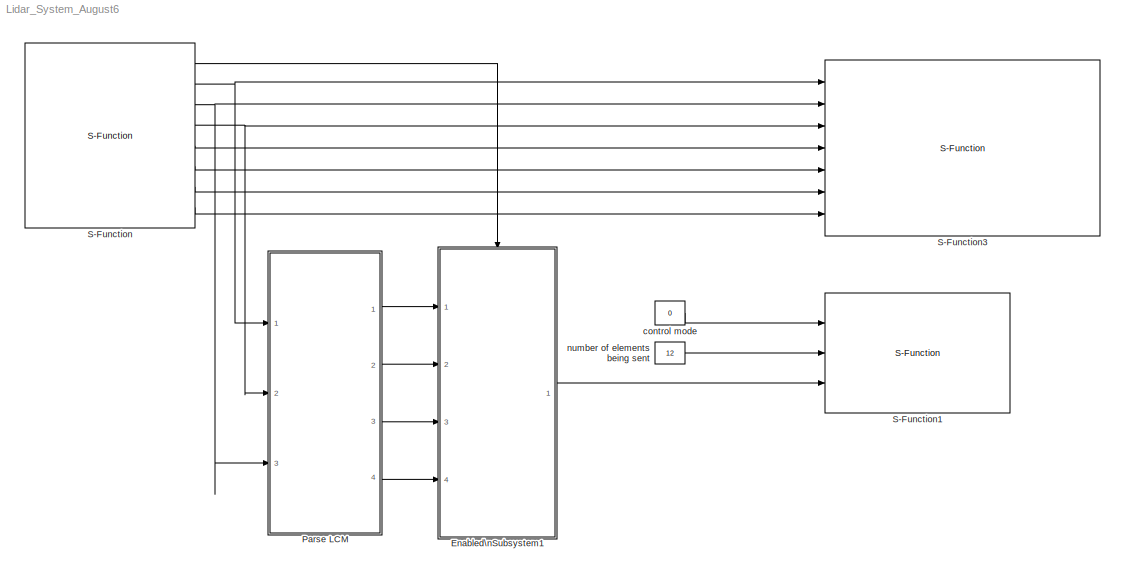
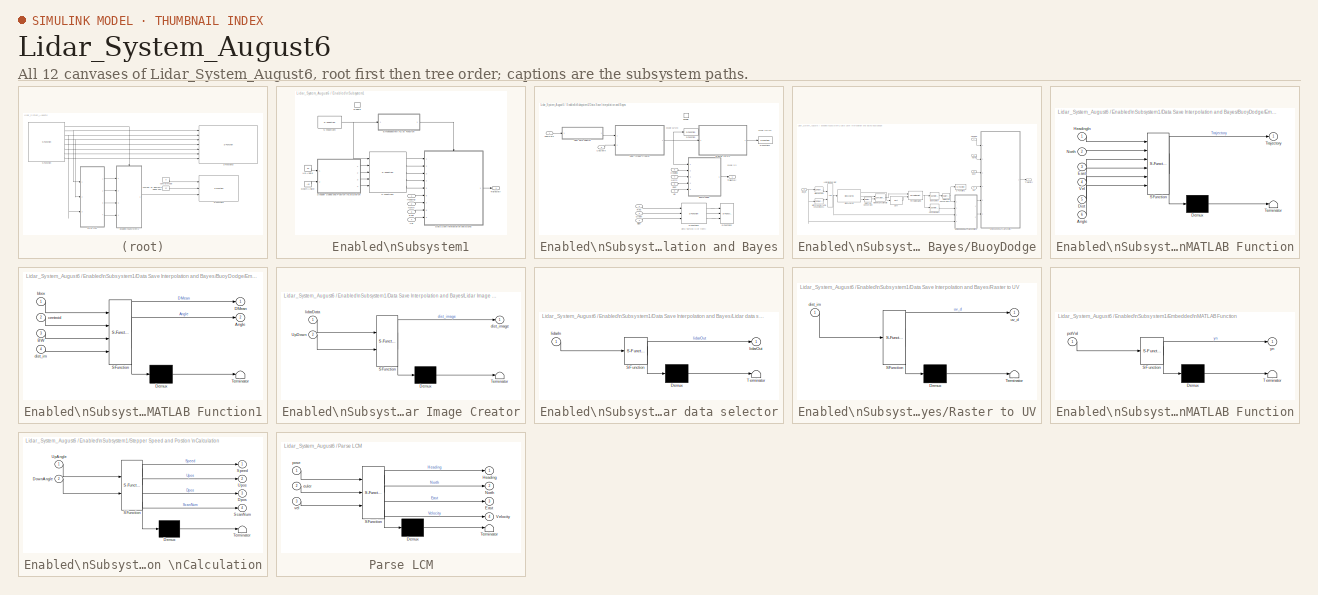
[diagram: thumbnail index - all 12 canvases of the model, root first then tree order]
MODEL Lidar_System_August6
KIND model
BLOCK [SubSystem] Enabled\nSubsystem1
  FunctionWithSeparateData = off
  MaskHideContents = off
  MinAlgLoopOccurrences = off
  Opaque = off
  Ports = [4, 1, 1]
  PropExecContextOutsideSubsystem = off
  RTWSystemCode = Auto
  RequestExecContextInheritance = off
  TreatAsAtomicUnit = on
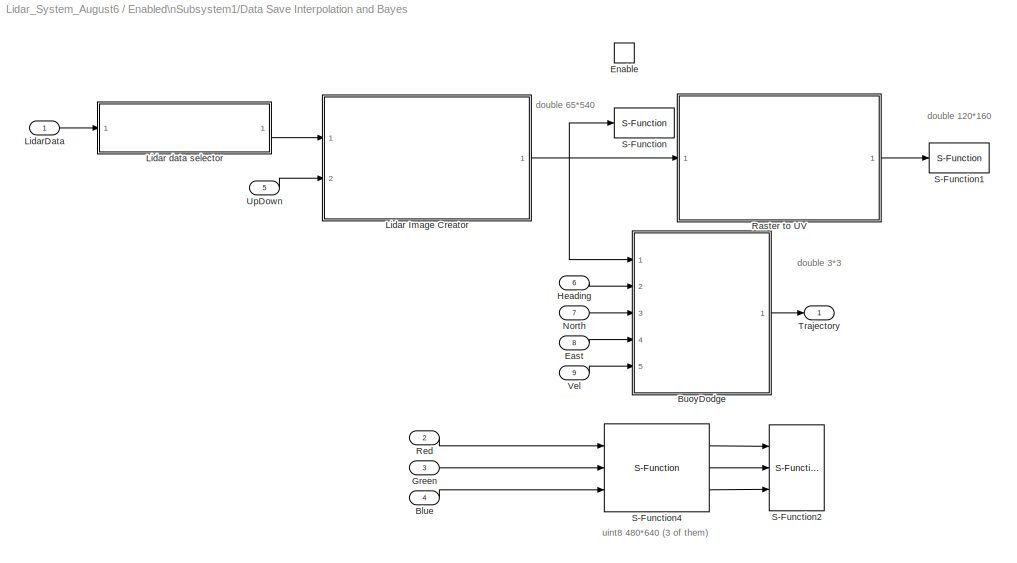
BLOCK [SubSystem] Enabled\nSubsystem1/Data Save Interpolation and Bayes
  FunctionWithSeparateData = off
  MaskHideContents = off
  MinAlgLoopOccurrences = off
  Opaque = off
  Ports = [9, 1, 1]
  PropExecContextOutsideSubsystem = off
  RTWSystemCode = Auto
  RequestExecContextInheritance = off
  TreatAsAtomicUnit = on
BLOCK [Inport] Enabled\nSubsystem1/Data Save Interpolation and Bayes/Blue
  IconDisplay = Port number
  OutDataType = fixdt(1, 16)
  OutScaling = 2^0
  Port = 4
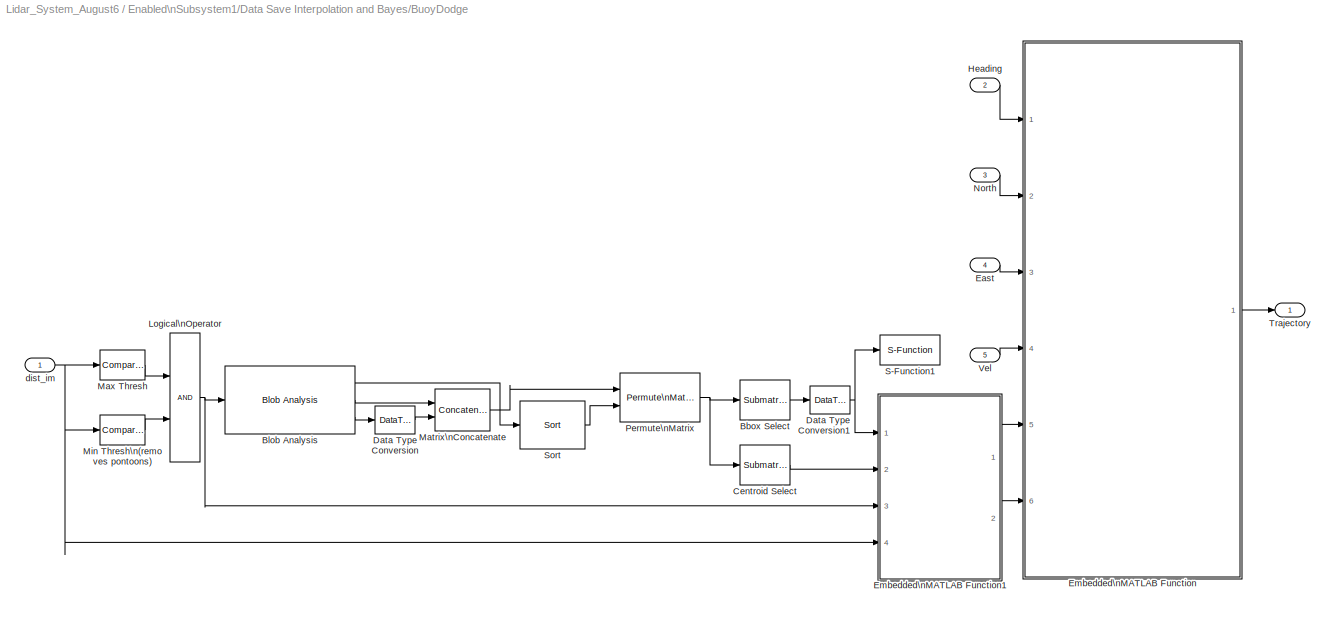
BLOCK [SubSystem] Enabled\nSubsystem1/Data Save Interpolation and Bayes/BuoyDodge
  FunctionWithSeparateData = off
  MaskHideContents = off
  MinAlgLoopOccurrences = off
  Opaque = off
  Ports = [5, 1]
  PropExecContextOutsideSubsystem = off
  RTWSystemCode = Auto
  RequestExecContextInheritance = off
BLOCK [Reference] Enabled\nSubsystem1/Data Save Interpolation and Bayes/BuoyDodge/Bbox Select  REF=dspmtrx3/Submatrix
  ColEndIndex = 1
  ColEndMode = Last
  ColSpan = One column
  ColStartIndex = 1
  ColStartMode = First
  Ports = [1, 1]
  RowEndIndex = 4
  RowEndMode = Last
  RowSpan = Range of rows
  RowStartIndex = 3
  RowStartMode = Index
  SourceBlock = dspmtrx3/Submatrix
  SourceType = Submatrix
BLOCK [Reference] Enabled\nSubsystem1/Data Save Interpolation and Bayes/BuoyDodge/Blob Analysis  REF=vipstatistics/Blob Analysis
  DialogController = vipDDGCreate
  DialogControllerArgs = DataTag0
  LockScale = off
  Ports = [1, 3]
  SourceBlock = vipstatistics/Blob Analysis
  SourceType = Blob Analysis
  accumFracLength = 0
  accumMode = Binary point scaling
  accumWordLength = 32
  angle = off
  area = on
  bBox = on
  centroid = on
  conn = 8
  eccentricity = off
  equivDiameterSq = off
  excludeBorderBlob = off
  extent = off
  fillValues = -1
  firstCoeffFracLength = 14
  firstCoeffMode = Binary point scaling
  firstCoeffWordLength = 16
  isCount = off
  isFill = on
  isLabel = off
  isOutVarDim = off
  majorAxis = off
  maxArea = intmax('uint32')
  maxBlobs = 12
  memoryFracLength = 16
  memoryMode = Same as product output
  memoryWordLength = 32
  minArea = 0
  minorAxis = off
  outDT = double
  outputFracLength = 16
  outputMode = Binary point scaling
  outputWordLength = 32
  overflowMode = off
  perimeter = off
  prodOutputFracLength = 16
  prodOutputMode = Binary point scaling
  prodOutputWordLength = 32
  roundingMode = Floor
  secondCoeffFracLength = 16
  secondCoeffMode = Binary point scaling
  secondCoeffWordLength = 32
  useMaxArea = off
  useMinArea = off
  warnIfNumBlobsExceeded = on
BLOCK [Reference] Enabled\nSubsystem1/Data Save Interpolation and Bayes/BuoyDodge/Centroid Select  REF=dspmtrx3/Submatrix
  ColEndIndex = 1
  ColEndMode = Last
  ColSpan = One column
  ColStartIndex = 1
  ColStartMode = First
  Ports = [1, 1]
  RowEndIndex = 2
  RowEndMode = Index
  RowSpan = Range of rows
  RowStartIndex = 5
  RowStartMode = First
  SourceBlock = dspmtrx3/Submatrix
  SourceType = Submatrix
BLOCK [DataTypeConversion] Enabled\nSubsystem1/Data Save Interpolation and Bayes/BuoyDodge/Data Type Conversion
  OutDataType = fixdt(1, 16)
  OutDataTypeMode = double
  OutDataTypeStr = double
  OutScaling = 2^0
  RndMeth = Floor
  SaturateOnIntegerOverflow = off
BLOCK [DataTypeConversion] Enabled\nSubsystem1/Data Save Interpolation and Bayes/BuoyDodge/Data Type Conversion1
  OutDataType = fixdt(1, 16)
  OutDataTypeMode = int32
  OutDataTypeStr = int32
  OutScaling = 2^0
  RndMeth = Floor
  SaturateOnIntegerOverflow = off
BLOCK [Inport] Enabled\nSubsystem1/Data Save Interpolation and Bayes/BuoyDodge/East
  IconDisplay = Port number
  OutDataType = fixdt(1, 16)
  OutScaling = 2^0
  Port = 4
BLOCK [SubSystem] Enabled\nSubsystem1/Data Save Interpolation and Bayes/BuoyDodge/Embedded\nMATLAB Function
  FunctionWithSeparateData = off
  MaskDescription = Embedded MATLAB block
  MaskDisplay = disp('BuoyTrajectories');
  MaskHideContents = off
  MaskIconFrame = on
  MaskIconOpaque = off
  MaskIconRotate = none
  MaskIconUnits = autoscale
  MaskPortRotate = default
  MaskSelfModifiable = on
  MaskType = Stateflow
  MinAlgLoopOccurrences = off
  Opaque = off
  PermitHierarchicalResolution = ExplicitOnly
  Ports = [6, 1]
  PropExecContextOutsideSubsystem = off
  RTWSystemCode = Auto
  RequestExecContextInheritance = off
BLOCK [Demux] Enabled\nSubsystem1/Data Save Interpolation and Bayes/BuoyDodge/Embedded\nMATLAB Function/ Demux 
  Outputs = 1
  Ports = [1, 1]
BLOCK [S-Function] Enabled\nSubsystem1/Data Save Interpolation and Bayes/BuoyDodge/Embedded\nMATLAB Function/ SFunction 
  EnableBusSupport = on
  FunctionName = sf_sfun
  PortCounts = [6 2]
  Ports = [6, 2]
  Tag = Stateflow S-Function Lidar_System_August6 2
BLOCK [Terminator] Enabled\nSubsystem1/Data Save Interpolation and Bayes/BuoyDodge/Embedded\nMATLAB Function/ Terminator 
BLOCK [Inport] Enabled\nSubsystem1/Data Save Interpolation and Bayes/BuoyDodge/Embedded\nMATLAB Function/Angle
  IconDisplay = Port number
  Port = 6
BLOCK [Inport] Enabled\nSubsystem1/Data Save Interpolation and Bayes/BuoyDodge/Embedded\nMATLAB Function/Dist
  IconDisplay = Port number
  Port = 5
BLOCK [Inport] Enabled\nSubsystem1/Data Save Interpolation and Bayes/BuoyDodge/Embedded\nMATLAB Function/East
  IconDisplay = Port number
  Port = 3
BLOCK [Inport] Enabled\nSubsystem1/Data Save Interpolation and Bayes/BuoyDodge/Embedded\nMATLAB Function/HeadingIn
  IconDisplay = Port number
  OutDataType = sfix(16)
  OutScaling = 2^0
BLOCK [Inport] Enabled\nSubsystem1/Data Save Interpolation and Bayes/BuoyDodge/Embedded\nMATLAB Function/North
  IconDisplay = Port number
  Port = 2
BLOCK [Outport] Enabled\nSubsystem1/Data Save Interpolation and Bayes/BuoyDodge/Embedded\nMATLAB Function/Trajectory
  IconDisplay = Port number
  OutDataType = sfix(16)
  OutScaling = 2^0
BLOCK [Inport] Enabled\nSubsystem1/Data Save Interpolation and Bayes/BuoyDodge/Embedded\nMATLAB Function/Vel
  IconDisplay = Port number
  Port = 4
BLOCK [SubSystem] Enabled\nSubsystem1/Data Save Interpolation and Bayes/BuoyDodge/Embedded\nMATLAB Function1
  FunctionWithSeparateData = off
  MaskDescription = Embedded MATLAB block
  MaskDisplay = disp('bbox_hist');
  MaskHideContents = off
  MaskIconFrame = on
  MaskIconOpaque = off
  MaskIconRotate = none
  MaskIconUnits = autoscale
  MaskPortRotate = default
  MaskSelfModifiable = on
  MaskType = Stateflow
  MinAlgLoopOccurrences = off
  Opaque = off
  PermitHierarchicalResolution = ExplicitOnly
  Ports = [4, 2]
  PropExecContextOutsideSubsystem = off
  RTWSystemCode = Auto
  RequestExecContextInheritance = off
BLOCK [Demux] Enabled\nSubsystem1/Data Save Interpolation and Bayes/BuoyDodge/Embedded\nMATLAB Function1/ Demux 
  Outputs = 1
  Ports = [1, 1]
BLOCK [S-Function] Enabled\nSubsystem1/Data Save Interpolation and Bayes/BuoyDodge/Embedded\nMATLAB Function1/ SFunction 
  EnableBusSupport = on
  FunctionName = sf_sfun
  PortCounts = [4 3]
  Ports = [4, 3]
  Tag = Stateflow S-Function Lidar_System_August6 3
BLOCK [Terminator] Enabled\nSubsystem1/Data Save Interpolation and Bayes/BuoyDodge/Embedded\nMATLAB Function1/ Terminator 
BLOCK [Outport] Enabled\nSubsystem1/Data Save Interpolation and Bayes/BuoyDodge/Embedded\nMATLAB Function1/Angle
  IconDisplay = Port number
  Port = 2
BLOCK [Inport] Enabled\nSubsystem1/Data Save Interpolation and Bayes/BuoyDodge/Embedded\nMATLAB Function1/BW
  IconDisplay = Port number
  Port = 3
BLOCK [Outport] Enabled\nSubsystem1/Data Save Interpolation and Bayes/BuoyDodge/Embedded\nMATLAB Function1/DMean
  IconDisplay = Port number
BLOCK [Inport] Enabled\nSubsystem1/Data Save Interpolation and Bayes/BuoyDodge/Embedded\nMATLAB Function1/bbox
  IconDisplay = Port number
  OutDataType = sfix(16)
  OutScaling = 2^0
BLOCK [Inport] Enabled\nSubsystem1/Data Save Interpolation and Bayes/BuoyDodge/Embedded\nMATLAB Function1/centroid
  IconDisplay = Port number
  Port = 2
BLOCK [Inport] Enabled\nSubsystem1/Data Save Interpolation and Bayes/BuoyDodge/Embedded\nMATLAB Function1/dist_im
  IconDisplay = Port number
  Port = 4
BLOCK [Inport] Enabled\nSubsystem1/Data Save Interpolation and Bayes/BuoyDodge/Heading
  IconDisplay = Port number
  OutDataType = fixdt(1, 16)
  OutScaling = 2^0
  Port = 2
BLOCK [Logic] Enabled\nSubsystem1/Data Save Interpolation and Bayes/BuoyDodge/Logical\nOperator
  AllPortsSameDT = off
  LogicDataType = fixdt(0, 8)
  OutDataTypeMode = boolean
  OutDataTypeStr = boolean
  Ports = [2, 1]
BLOCK [Concatenate] Enabled\nSubsystem1/Data Save Interpolation and Bayes/BuoyDodge/Matrix\nConcatenate
  Mode = Multidimensional array
  Ports = [2, 1]
BLOCK [Reference] Enabled\nSubsystem1/Data Save Interpolation and Bayes/BuoyDodge/Max Thresh  REF=simulink/Logic and Bit\nOperations/Compare\nTo Constant
  FunctionWithSeparateData = off
  LogicOutDataTypeMode = boolean
  Ports = [1, 1]
  RTWMemSecDataConstants = Inherit from model
  RTWMemSecDataInternal = Inherit from model
  RTWMemSecDataParameters = Inherit from model
  RTWMemSecFuncExecute = Inherit from model
  RTWMemSecFuncInitTerm = Inherit from model
  ShowPortLabels = FromPortIcon
  SourceBlock = simulink/Logic and Bit\nOperations/Compare\nTo Constant
  SourceType = Compare To Constant
  SystemSampleTime = -1
  ZeroCross = off
  const = 20000
  relop = <=
BLOCK [Reference] Enabled\nSubsystem1/Data Save Interpolation and Bayes/BuoyDodge/Min Thresh\n(removes pontoons)  REF=simulink/Logic and Bit\nOperations/Compare\nTo Constant
  FunctionWithSeparateData = off
  LogicOutDataTypeMode = boolean
  Ports = [1, 1]
  RTWMemSecDataConstants = Inherit from model
  RTWMemSecDataInternal = Inherit from model
  RTWMemSecDataParameters = Inherit from model
  RTWMemSecFuncExecute = Inherit from model
  RTWMemSecFuncInitTerm = Inherit from model
  ShowPortLabels = FromPortIcon
  SourceBlock = simulink/Logic and Bit\nOperations/Compare\nTo Constant
  SourceType = Compare To Constant
  SystemSampleTime = -1
  ZeroCross = off
  const = 2000
  relop = >
BLOCK [Inport] Enabled\nSubsystem1/Data Save Interpolation and Bayes/BuoyDodge/North
  IconDisplay = Port number
  OutDataType = fixdt(1, 16)
  OutScaling = 2^0
  Port = 3
BLOCK [Reference] Enabled\nSubsystem1/Data Save Interpolation and Bayes/BuoyDodge/Permute\nMatrix  REF=dspmtrx3/Permute\nMatrix
  Ports = [2, 1]
  SourceBlock = dspmtrx3/Permute\nMatrix
  SourceType = Permute Matrix
  ZeroOneIdxMode = One-based
  checkDims = off
  errmode = Clip index
  mode = Columns
BLOCK [S-Function] Enabled\nSubsystem1/Data Save Interpolation and Bayes/BuoyDodge/S-Function1
  EnableBusSupport = off
  FunctionName = singleblobprint
  Ports = [1]
BLOCK [Reference] Enabled\nSubsystem1/Data Save Interpolation and Bayes/BuoyDodge/Sort  REF=dspstat3/Sort
  DialogController = dspDDGCreate
  DialogControllerArgs = DataTag1
  LockScale = off
  Ports = [1, 1]
  SourceBlock = dspstat3/Sort
  SourceType = Sort
  accumFracLength = 30
  accumMode = Same as product output
  accumWordLength = 32
  additionalParams = off
  allowOverrides = on
  dir = Descending
  otype = Index
  overflowMode = off
  prodOutputFracLength = 30
  prodOutputMode = Same as input
  prodOutputWordLength = 32
  roundingMode = Floor
  sortAlg = Quick sort
BLOCK [Outport] Enabled\nSubsystem1/Data Save Interpolation and Bayes/BuoyDodge/Trajectory
  IconDisplay = Port number
  OutDataType = fixdt(1, 16)
  OutScaling = 2^0
BLOCK [Inport] Enabled\nSubsystem1/Data Save Interpolation and Bayes/BuoyDodge/Vel
  IconDisplay = Port number
  OutDataType = fixdt(1, 16)
  OutScaling = 2^0
  Port = 5
BLOCK [Inport] Enabled\nSubsystem1/Data Save Interpolation and Bayes/BuoyDodge/dist_im
  IconDisplay = Port number
  OutDataType = fixdt(1, 16)
  OutScaling = 2^0
BLOCK [Inport] Enabled\nSubsystem1/Data Save Interpolation and Bayes/East
  IconDisplay = Port number
  OutDataType = fixdt(1, 16)
  OutScaling = 2^0
  Port = 8
BLOCK [EnablePort] Enabled\nSubsystem1/Data Save Interpolation and Bayes/Enable
  Ports = []
BLOCK [Inport] Enabled\nSubsystem1/Data Save Interpolation and Bayes/Green
  IconDisplay = Port number
  OutDataType = fixdt(1, 16)
  OutScaling = 2^0
  Port = 3
BLOCK [Inport] Enabled\nSubsystem1/Data Save Interpolation and Bayes/Heading
  IconDisplay = Port number
  OutDataType = fixdt(1, 16)
  OutScaling = 2^0
  Port = 6
BLOCK [SubSystem] Enabled\nSubsystem1/Data Save Interpolation and Bayes/Lidar Image Creator
  FunctionWithSeparateData = off
  MaskDescription = Embedded MATLAB block
  MaskDisplay = disp('scanImages');
  MaskHideContents = off
  MaskIconFrame = on
  MaskIconOpaque = off
  MaskIconRotate = none
  MaskIconUnits = autoscale
  MaskPortRotate = default
  MaskSelfModifiable = on
  MaskType = Stateflow
  MinAlgLoopOccurrences = off
  Opaque = off
  PermitHierarchicalResolution = ExplicitOnly
  Ports = [2, 1]
  PropExecContextOutsideSubsystem = off
  RTWSystemCode = Auto
  RequestExecContextInheritance = off
BLOCK [Demux] Enabled\nSubsystem1/Data Save Interpolation and Bayes/Lidar Image Creator/ Demux 
  Outputs = 1
  Ports = [1, 1]
BLOCK [S-Function] Enabled\nSubsystem1/Data Save Interpolation and Bayes/Lidar Image Creator/ SFunction 
  EnableBusSupport = on
  FunctionName = sf_sfun
  PortCounts = [2 2]
  Ports = [2, 2]
  Tag = Stateflow S-Function Lidar_System_August6 10
BLOCK [Terminator] Enabled\nSubsystem1/Data Save Interpolation and Bayes/Lidar Image Creator/ Terminator 
BLOCK [Inport] Enabled\nSubsystem1/Data Save Interpolation and Bayes/Lidar Image Creator/UpDown
  IconDisplay = Port number
  Port = 2
BLOCK [Outport] Enabled\nSubsystem1/Data Save Interpolation and Bayes/Lidar Image Creator/dist_image
  IconDisplay = Port number
  OutDataType = sfix(16)
  OutScaling = 2^0
BLOCK [Inport] Enabled\nSubsystem1/Data Save Interpolation and Bayes/Lidar Image Creator/lidarData
  IconDisplay = Port number
  OutDataType = sfix(16)
  OutScaling = 2^0
BLOCK [SubSystem] Enabled\nSubsystem1/Data Save Interpolation and Bayes/Lidar data selector
  FunctionWithSeparateData = off
  MaskDescription = Embedded MATLAB block
  MaskDisplay = disp('data_selector');
  MaskHideContents = off
  MaskIconFrame = on
  MaskIconOpaque = off
  MaskIconRotate = none
  MaskIconUnits = autoscale
  MaskPortRotate = default
  MaskSelfModifiable = on
  MaskType = Stateflow
  MinAlgLoopOccurrences = off
  Opaque = off
  PermitHierarchicalResolution = ExplicitOnly
  Ports = [1, 1]
  PropExecContextOutsideSubsystem = off
  RTWSystemCode = Auto
  RequestExecContextInheritance = off
BLOCK [Demux] Enabled\nSubsystem1/Data Save Interpolation and Bayes/Lidar data selector/ Demux 
  Outputs = 1
  Ports = [1, 1]
BLOCK [S-Function] Enabled\nSubsystem1/Data Save Interpolation and Bayes/Lidar data selector/ SFunction 
  EnableBusSupport = on
  FunctionName = sf_sfun
  PortCounts = [1 2]
  Ports = [1, 2]
  Tag = Stateflow S-Function Lidar_System_August6 11
BLOCK [Terminator] Enabled\nSubsystem1/Data Save Interpolation and Bayes/Lidar data selector/ Terminator 
BLOCK [Inport] Enabled\nSubsystem1/Data Save Interpolation and Bayes/Lidar data selector/lidarIn
  IconDisplay = Port number
  OutDataType = sfix(16)
  OutScaling = 2^0
BLOCK [Outport] Enabled\nSubsystem1/Data Save Interpolation and Bayes/Lidar data selector/lidarOut
  IconDisplay = Port number
  OutDataType = sfix(16)
  OutScaling = 2^0
BLOCK [Inport] Enabled\nSubsystem1/Data Save Interpolation and Bayes/LidarData
  IconDisplay = Port number
  OutDataType = fixdt(1, 16)
  OutScaling = 2^0
BLOCK [Inport] Enabled\nSubsystem1/Data Save Interpolation and Bayes/North
  IconDisplay = Port number
  OutDataType = fixdt(1, 16)
  OutScaling = 2^0
  Port = 7
BLOCK [SubSystem] Enabled\nSubsystem1/Data Save Interpolation and Bayes/Raster to UV
  FunctionWithSeparateData = off
  MaskDescription = Embedded MATLAB block
  MaskDisplay = disp('AngleMatch');
  MaskHideContents = off
  MaskIconFrame = on
  MaskIconOpaque = off
  MaskIconRotate = none
  MaskIconUnits = autoscale
  MaskPortRotate = default
  MaskSelfModifiable = on
  MaskType = Stateflow
  MinAlgLoopOccurrences = off
  Opaque = off
  PermitHierarchicalResolution = ExplicitOnly
  Ports = [1, 1]
  PropExecContextOutsideSubsystem = off
  RTWSystemCode = Auto
  RequestExecContextInheritance = off
BLOCK [Demux] Enabled\nSubsystem1/Data Save Interpolation and Bayes/Raster to UV/ Demux 
  Outputs = 1
  Ports = [1, 1]
BLOCK [S-Function] Enabled\nSubsystem1/Data Save Interpolation and Bayes/Raster to UV/ SFunction 
  EnableBusSupport = on
  FunctionName = sf_sfun
  PortCounts = [1 2]
  Ports = [1, 2]
  Tag = Stateflow S-Function Lidar_System_August6 5
BLOCK [Terminator] Enabled\nSubsystem1/Data Save Interpolation and Bayes/Raster to UV/ Terminator 
BLOCK [Inport] Enabled\nSubsystem1/Data Save Interpolation and Bayes/Raster to UV/dist_im
  IconDisplay = Port number
BLOCK [Outport] Enabled\nSubsystem1/Data Save Interpolation and Bayes/Raster to UV/uv_d
  IconDisplay = Port number
  OutDataType = sfix(16)
  OutScaling = 2^0
BLOCK [Inport] Enabled\nSubsystem1/Data Save Interpolation and Bayes/Red
  IconDisplay = Port number
  OutDataType = fixdt(1, 16)
  OutScaling = 2^0
  Port = 2
BLOCK [S-Function] Enabled\nSubsystem1/Data Save Interpolation and Bayes/S-Function
  EnableBusSupport = off
  FunctionName = distimageExportV2
  Ports = [1]
BLOCK [S-Function] Enabled\nSubsystem1/Data Save Interpolation and Bayes/S-Function1
  EnableBusSupport = off
  FunctionName = uvdataExportV3
  Ports = [1]
BLOCK [S-Function] Enabled\nSubsystem1/Data Save Interpolation and Bayes/S-Function2
  EnableBusSupport = off
  FunctionName = hsvExport
  Ports = [3]
BLOCK [S-Function] Enabled\nSubsystem1/Data Save Interpolation and Bayes/S-Function4
  EnableBusSupport = off
  FunctionName = rgbtohsv_sfunV2
  Ports = [3, 3]
BLOCK [Outport] Enabled\nSubsystem1/Data Save Interpolation and Bayes/Trajectory
  IconDisplay = Port number
  OutDataType = fixdt(1, 16)
  OutScaling = 2^0
BLOCK [Inport] Enabled\nSubsystem1/Data Save Interpolation and Bayes/UpDown
  IconDisplay = Port number
  OutDataType = fixdt(1, 16)
  OutScaling = 2^0
  Port = 5
BLOCK [Inport] Enabled\nSubsystem1/Data Save Interpolation and Bayes/Vel
  IconDisplay = Port number
  OutDataType = fixdt(1, 16)
  OutScaling = 2^0
  Port = 9
BLOCK [Constant] Enabled\nSubsystem1/Down Angle
  OutDataType = fixdt(1, 16)
  OutScaling = 2^0
  Value = -45
BLOCK [Inport] Enabled\nSubsystem1/East
  IconDisplay = Port number
  OutDataType = fixdt(1, 16)
  OutScaling = 2^0
  Port = 3
BLOCK [SubSystem] Enabled\nSubsystem1/Embedded\nMATLAB Function
  FunctionWithSeparateData = off
  MaskDescription = Embedded MATLAB block
  MaskDisplay = disp('check_pot_val');
  MaskHideContents = off
  MaskIconFrame = on
  MaskIconOpaque = off
  MaskIconRotate = none
  MaskIconUnits = autoscale
  MaskPortRotate = default
  MaskSelfModifiable = on
  MaskType = Stateflow
  MinAlgLoopOccurrences = off
  Opaque = off
  PermitHierarchicalResolution = ExplicitOnly
  Ports = [1, 1]
  PropExecContextOutsideSubsystem = off
  RTWSystemCode = Auto
  RequestExecContextInheritance = off
BLOCK [Demux] Enabled\nSubsystem1/Embedded\nMATLAB Function/ Demux 
  Outputs = 1
  Ports = [1, 1]
BLOCK [S-Function] Enabled\nSubsystem1/Embedded\nMATLAB Function/ SFunction 
  EnableBusSupport = on
  FunctionName = sf_sfun
  PortCounts = [1 2]
  Ports = [1, 2]
  Tag = Stateflow S-Function Lidar_System_August6 13
BLOCK [Terminator] Enabled\nSubsystem1/Embedded\nMATLAB Function/ Terminator 
BLOCK [Inport] Enabled\nSubsystem1/Embedded\nMATLAB Function/potVal
  IconDisplay = Port number
  OutDataType = sfix(16)
  OutScaling = 2^0
BLOCK [Outport] Enabled\nSubsystem1/Embedded\nMATLAB Function/yn
  IconDisplay = Port number
  OutDataType = sfix(16)
  OutScaling = 2^0
BLOCK [EnablePort] Enabled\nSubsystem1/Enable
  Ports = []
BLOCK [Inport] Enabled\nSubsystem1/Heading
  IconDisplay = Port number
  OutDataType = fixdt(1, 16)
  OutScaling = 2^0
BLOCK [Inport] Enabled\nSubsystem1/North
  IconDisplay = Port number
  OutDataType = fixdt(1, 16)
  OutScaling = 2^0
  Port = 2
BLOCK [S-Function] Enabled\nSubsystem1/S-Function1
  EnableBusSupport = off
  FunctionName = lidarCam_sfunct
  Ports = [5, 5]
BLOCK [S-Function] Enabled\nSubsystem1/S-Function4
  EnableBusSupport = off
  FunctionName = TT_pot_readerV1
  Ports = [0, 1]
BLOCK [SubSystem] Enabled\nSubsystem1/Stepper Speed and Postion \nCalculation
  FunctionWithSeparateData = off
  MaskDescription = Embedded MATLAB block
  MaskDisplay = disp('stepper_calc');
  MaskHideContents = off
  MaskIconFrame = on
  MaskIconOpaque = off
  MaskIconRotate = none
  MaskIconUnits = autoscale
  MaskPortRotate = default
  MaskSelfModifiable = on
  MaskType = Stateflow
  MinAlgLoopOccurrences = off
  Opaque = off
  PermitHierarchicalResolution = ExplicitOnly
  Ports = [2, 4]
  PropExecContextOutsideSubsystem = off
  RTWSystemCode = Auto
  RequestExecContextInheritance = off
BLOCK [Demux] Enabled\nSubsystem1/Stepper Speed and Postion \nCalculation/ Demux 
  Outputs = 1
  Ports = [1, 1]
BLOCK [S-Function] Enabled\nSubsystem1/Stepper Speed and Postion \nCalculation/ SFunction 
  EnableBusSupport = on
  FunctionName = sf_sfun
  PortCounts = [2 5]
  Ports = [2, 5]
  Tag = Stateflow S-Function Lidar_System_August6 14
BLOCK [Terminator] Enabled\nSubsystem1/Stepper Speed and Postion \nCalculation/ Terminator 
BLOCK [Inport] Enabled\nSubsystem1/Stepper Speed and Postion \nCalculation/DownAngle
  IconDisplay = Port number
  Port = 2
BLOCK [Outport] Enabled\nSubsystem1/Stepper Speed and Postion \nCalculation/Dpos
  IconDisplay = Port number
  Port = 3
BLOCK [Outport] Enabled\nSubsystem1/Stepper Speed and Postion \nCalculation/ScanNum
  IconDisplay = Port number
  Port = 4
BLOCK [Outport] Enabled\nSubsystem1/Stepper Speed and Postion \nCalculation/Speed
  IconDisplay = Port number
  OutDataType = sfix(16)
  OutScaling = 2^0
BLOCK [Inport] Enabled\nSubsystem1/Stepper Speed and Postion \nCalculation/UpAngle
  IconDisplay = Port number
  OutDataType = sfix(16)
  OutScaling = 2^0
BLOCK [Outport] Enabled\nSubsystem1/Stepper Speed and Postion \nCalculation/Upos
  IconDisplay = Port number
  Port = 2
BLOCK [Outport] Enabled\nSubsystem1/Trajectory
  IconDisplay = Port number
  OutDataType = fixdt(1, 16)
  OutScaling = 2^0
BLOCK [Constant] Enabled\nSubsystem1/Up Angle
  OutDataType = fixdt(1, 16)
  OutScaling = 2^0
  Value = 30
BLOCK [Inport] Enabled\nSubsystem1/Vel
  IconDisplay = Port number
  OutDataType = fixdt(1, 16)
  OutScaling = 2^0
  Port = 4
BLOCK [SubSystem] Parse LCM
  FunctionWithSeparateData = off
  MaskDescription = Embedded MATLAB block
  MaskDisplay = disp('ParseLCM');
  MaskHideContents = off
  MaskIconFrame = on
  MaskIconOpaque = off
  MaskIconRotate = none
  MaskIconUnits = autoscale
  MaskPortRotate = default
  MaskSelfModifiable = on
  MaskType = Stateflow
  MinAlgLoopOccurrences = off
  Opaque = off
  PermitHierarchicalResolution = ExplicitOnly
  Ports = [3, 4]
  PropExecContextOutsideSubsystem = off
  RTWSystemCode = Auto
  RequestExecContextInheritance = off
BLOCK [Demux] Parse LCM/ Demux 
  Outputs = 1
  Ports = [1, 1]
BLOCK [S-Function] Parse LCM/ SFunction 
  EnableBusSupport = on
  FunctionName = sf_sfun
  PortCounts = [3 5]
  Ports = [3, 5]
  Tag = Stateflow S-Function Lidar_System_August6 1
BLOCK [Terminator] Parse LCM/ Terminator 
BLOCK [Outport] Parse LCM/East
  IconDisplay = Port number
  Port = 3
BLOCK [Outport] Parse LCM/Heading
  IconDisplay = Port number
  OutDataType = sfix(16)
  OutScaling = 2^0
BLOCK [Outport] Parse LCM/North
  IconDisplay = Port number
  Port = 2
BLOCK [Outport] Parse LCM/Velocity
  IconDisplay = Port number
  Port = 4
BLOCK [Inport] Parse LCM/euler
  IconDisplay = Port number
  Port = 2
BLOCK [Inport] Parse LCM/pose
  IconDisplay = Port number
  OutDataType = sfix(16)
  OutScaling = 2^0
BLOCK [Inport] Parse LCM/vel
  IconDisplay = Port number
  Port = 3
BLOCK [S-Function] S-Function
  EnableBusSupport = off
  FunctionName = LCM_RecvV2
  MaskDisplay = port_label('output',1,'enable')\nport_label('output',2,'pose')\nport_label('output',3,'vel')\nport_label('output',4,'euler')\nport_label('output',5,'portstate')\nport_label('output',6,'stbdstate')\nport_label('output',7,'starttime')\nport_label('output',8,'elapsedtime')\n\nfprintf('LCM_RecvV2')
  MaskIconFrame = on
  MaskIconOpaque = on
  MaskIconRotate = none
  MaskIconUnits = autoscale
  MaskPortRotate = default
  Ports = [0, 8]
BLOCK [S-Function] S-Function1
  EnableBusSupport = off
  FunctionName = LCM_SendV2
  MaskDisplay = port_label('input',1,'cmode')\nport_label('input',2,'count')\nport_label('input',3,'traject')\n\nfprintf('LCM_SendV2')
  MaskIconFrame = on
  MaskIconOpaque = on
  MaskIconRotate = none
  MaskIconUnits = autoscale
  MaskPortRotate = default
  Ports = [3]
BLOCK [S-Function] S-Function3
  EnableBusSupport = off
  FunctionName = lcm_logger_saveV2
  Ports = [7]
BLOCK [Constant] control mode
  OutDataType = fixdt(1, 16)
  OutDataTypeMode = int16
  OutDataTypeStr = int16
  OutScaling = 2^0
  Value = 0
BLOCK [Constant] number of elements being sent
  OutDataType = fixdt(1, 16)
  OutDataTypeMode = int16
  OutDataTypeStr = int16
  OutScaling = 2^0
  Value = 12
ANNOTATION Enabled\nSubsystem1/Data Save Interpolation and Bayes: double 120*160
ANNOTATION Enabled\nSubsystem1/Data Save Interpolation and Bayes: double 3*3
ANNOTATION Enabled\nSubsystem1/Data Save Interpolation and Bayes: double 65*540
ANNOTATION Enabled\nSubsystem1/Data Save Interpolation and Bayes: uint8 480*640 (3 of them)
LINE Enabled\nSubsystem1/Data Save Interpolation and Bayes/Blue:1 -> Enabled\nSubsystem1/Data Save Interpolation and Bayes/S-Function4:3
LINE Enabled\nSubsystem1/Data Save Interpolation and Bayes/BuoyDodge/Bbox Select:1 -> Enabled\nSubsystem1/Data Save Interpolation and Bayes/BuoyDodge/Data Type Conversion1:1
LINE Enabled\nSubsystem1/Data Save Interpolation and Bayes/BuoyDodge/Blob Analysis:1 -> Enabled\nSubsystem1/Data Save Interpolation and Bayes/BuoyDodge/Sort:1
LINE Enabled\nSubsystem1/Data Save Interpolation and Bayes/BuoyDodge/Blob Analysis:2 -> Enabled\nSubsystem1/Data Save Interpolation and Bayes/BuoyDodge/Matrix\nConcatenate:1
LINE Enabled\nSubsystem1/Data Save Interpolation and Bayes/BuoyDodge/Blob Analysis:3 -> Enabled\nSubsystem1/Data Save Interpolation and Bayes/BuoyDodge/Data Type Conversion:1
LINE Enabled\nSubsystem1/Data Save Interpolation and Bayes/BuoyDodge/Centroid Select:1 -> Enabled\nSubsystem1/Data Save Interpolation and Bayes/BuoyDodge/Embedded\nMATLAB Function1:2
NET Enabled\nSubsystem1/Data Save Interpolation and Bayes/BuoyDodge/Data Type Conversion1:1 -> Enabled\nSubsystem1/Data Save Interpolation and Bayes/BuoyDodge/Embedded\nMATLAB Function1:1, Enabled\nSubsystem1/Data Save Interpolation and Bayes/BuoyDodge/S-Function1:1
LINE Enabled\nSubsystem1/Data Save Interpolation and Bayes/BuoyDodge/Data Type Conversion:1 -> Enabled\nSubsystem1/Data Save Interpolation and Bayes/BuoyDodge/Matrix\nConcatenate:2
LINE Enabled\nSubsystem1/Data Save Interpolation and Bayes/BuoyDodge/East:1 -> Enabled\nSubsystem1/Data Save Interpolation and Bayes/BuoyDodge/Embedded\nMATLAB Function:3
LINE Enabled\nSubsystem1/Data Save Interpolation and Bayes/BuoyDodge/Embedded\nMATLAB Function/ Demux :1 -> Enabled\nSubsystem1/Data Save Interpolation and Bayes/BuoyDodge/Embedded\nMATLAB Function/ Terminator :1
LINE Enabled\nSubsystem1/Data Save Interpolation and Bayes/BuoyDodge/Embedded\nMATLAB Function/ SFunction :1 -> Enabled\nSubsystem1/Data Save Interpolation and Bayes/BuoyDodge/Embedded\nMATLAB Function/ Demux :1
LINE Enabled\nSubsystem1/Data Save Interpolation and Bayes/BuoyDodge/Embedded\nMATLAB Function/ SFunction :2 -> Enabled\nSubsystem1/Data Save Interpolation and Bayes/BuoyDodge/Embedded\nMATLAB Function/Trajectory:1
LINE Enabled\nSubsystem1/Data Save Interpolation and Bayes/BuoyDodge/Embedded\nMATLAB Function/Angle:1 -> Enabled\nSubsystem1/Data Save Interpolation and Bayes/BuoyDodge/Embedded\nMATLAB Function/ SFunction :6
LINE Enabled\nSubsystem1/Data Save Interpolation and Bayes/BuoyDodge/Embedded\nMATLAB Function/Dist:1 -> Enabled\nSubsystem1/Data Save Interpolation and Bayes/BuoyDodge/Embedded\nMATLAB Function/ SFunction :5
LINE Enabled\nSubsystem1/Data Save Interpolation and Bayes/BuoyDodge/Embedded\nMATLAB Function/East:1 -> Enabled\nSubsystem1/Data Save Interpolation and Bayes/BuoyDodge/Embedded\nMATLAB Function/ SFunction :3
LINE Enabled\nSubsystem1/Data Save Interpolation and Bayes/BuoyDodge/Embedded\nMATLAB Function/HeadingIn:1 -> Enabled\nSubsystem1/Data Save Interpolation and Bayes/BuoyDodge/Embedded\nMATLAB Function/ SFunction :1
LINE Enabled\nSubsystem1/Data Save Interpolation and Bayes/BuoyDodge/Embedded\nMATLAB Function/North:1 -> Enabled\nSubsystem1/Data Save Interpolation and Bayes/BuoyDodge/Embedded\nMATLAB Function/ SFunction :2
LINE Enabled\nSubsystem1/Data Save Interpolation and Bayes/BuoyDodge/Embedded\nMATLAB Function/Vel:1 -> Enabled\nSubsystem1/Data Save Interpolation and Bayes/BuoyDodge/Embedded\nMATLAB Function/ SFunction :4
LINE Enabled\nSubsystem1/Data Save Interpolation and Bayes/BuoyDodge/Embedded\nMATLAB Function1/ Demux :1 -> Enabled\nSubsystem1/Data Save Interpolation and Bayes/BuoyDodge/Embedded\nMATLAB Function1/ Terminator :1
LINE Enabled\nSubsystem1/Data Save Interpolation and Bayes/BuoyDodge/Embedded\nMATLAB Function1/ SFunction :1 -> Enabled\nSubsystem1/Data Save Interpolation and Bayes/BuoyDodge/Embedded\nMATLAB Function1/ Demux :1
LINE Enabled\nSubsystem1/Data Save Interpolation and Bayes/BuoyDodge/Embedded\nMATLAB Function1/ SFunction :2 -> Enabled\nSubsystem1/Data Save Interpolation and Bayes/BuoyDodge/Embedded\nMATLAB Function1/DMean:1
LINE Enabled\nSubsystem1/Data Save Interpolation and Bayes/BuoyDodge/Embedded\nMATLAB Function1/ SFunction :3 -> Enabled\nSubsystem1/Data Save Interpolation and Bayes/BuoyDodge/Embedded\nMATLAB Function1/Angle:1
LINE Enabled\nSubsystem1/Data Save Interpolation and Bayes/BuoyDodge/Embedded\nMATLAB Function1/BW:1 -> Enabled\nSubsystem1/Data Save Interpolation and Bayes/BuoyDodge/Embedded\nMATLAB Function1/ SFunction :3
LINE Enabled\nSubsystem1/Data Save Interpolation and Bayes/BuoyDodge/Embedded\nMATLAB Function1/bbox:1 -> Enabled\nSubsystem1/Data Save Interpolation and Bayes/BuoyDodge/Embedded\nMATLAB Function1/ SFunction :1
LINE Enabled\nSubsystem1/Data Save Interpolation and Bayes/BuoyDodge/Embedded\nMATLAB Function1/centroid:1 -> Enabled\nSubsystem1/Data Save Interpolation and Bayes/BuoyDodge/Embedded\nMATLAB Function1/ SFunction :2
LINE Enabled\nSubsystem1/Data Save Interpolation and Bayes/BuoyDodge/Embedded\nMATLAB Function1/dist_im:1 -> Enabled\nSubsystem1/Data Save Interpolation and Bayes/BuoyDodge/Embedded\nMATLAB Function1/ SFunction :4
LINE Enabled\nSubsystem1/Data Save Interpolation and Bayes/BuoyDodge/Embedded\nMATLAB Function1:1 -> Enabled\nSubsystem1/Data Save Interpolation and Bayes/BuoyDodge/Embedded\nMATLAB Function:5
LINE Enabled\nSubsystem1/Data Save Interpolation and Bayes/BuoyDodge/Embedded\nMATLAB Function1:2 -> Enabled\nSubsystem1/Data Save Interpolation and Bayes/BuoyDodge/Embedded\nMATLAB Function:6
LINE Enabled\nSubsystem1/Data Save Interpolation and Bayes/BuoyDodge/Embedded\nMATLAB Function:1 -> Enabled\nSubsystem1/Data Save Interpolation and Bayes/BuoyDodge/Trajectory:1
LINE Enabled\nSubsystem1/Data Save Interpolation and Bayes/BuoyDodge/Heading:1 -> Enabled\nSubsystem1/Data Save Interpolation and Bayes/BuoyDodge/Embedded\nMATLAB Function:1
NET Enabled\nSubsystem1/Data Save Interpolation and Bayes/BuoyDodge/Logical\nOperator:1 -> Enabled\nSubsystem1/Data Save Interpolation and Bayes/BuoyDodge/Blob Analysis:1, Enabled\nSubsystem1/Data Save Interpolation and Bayes/BuoyDodge/Embedded\nMATLAB Function1:3
LINE Enabled\nSubsystem1/Data Save Interpolation and Bayes/BuoyDodge/Matrix\nConcatenate:1 -> Enabled\nSubsystem1/Data Save Interpolation and Bayes/BuoyDodge/Permute\nMatrix:1
LINE Enabled\nSubsystem1/Data Save Interpolation and Bayes/BuoyDodge/Max Thresh:1 -> Enabled\nSubsystem1/Data Save Interpolation and Bayes/BuoyDodge/Logical\nOperator:1
LINE Enabled\nSubsystem1/Data Save Interpolation and Bayes/BuoyDodge/Min Thresh\n(removes pontoons):1 -> Enabled\nSubsystem1/Data Save Interpolation and Bayes/BuoyDodge/Logical\nOperator:2
LINE Enabled\nSubsystem1/Data Save Interpolation and Bayes/BuoyDodge/North:1 -> Enabled\nSubsystem1/Data Save Interpolation and Bayes/BuoyDodge/Embedded\nMATLAB Function:2
NET Enabled\nSubsystem1/Data Save Interpolation and Bayes/BuoyDodge/Permute\nMatrix:1 -> Enabled\nSubsystem1/Data Save Interpolation and Bayes/BuoyDodge/Bbox Select:1, Enabled\nSubsystem1/Data Save Interpolation and Bayes/BuoyDodge/Centroid Select:1
LINE Enabled\nSubsystem1/Data Save Interpolation and Bayes/BuoyDodge/Sort:1 -> Enabled\nSubsystem1/Data Save Interpolation and Bayes/BuoyDodge/Permute\nMatrix:2
LINE Enabled\nSubsystem1/Data Save Interpolation and Bayes/BuoyDodge/Vel:1 -> Enabled\nSubsystem1/Data Save Interpolation and Bayes/BuoyDodge/Embedded\nMATLAB Function:4
NET Enabled\nSubsystem1/Data Save Interpolation and Bayes/BuoyDodge/dist_im:1 -> Enabled\nSubsystem1/Data Save Interpolation and Bayes/BuoyDodge/Embedded\nMATLAB Function1:4, Enabled\nSubsystem1/Data Save Interpolation and Bayes/BuoyDodge/Max Thresh:1, Enabled\nSubsystem1/Data Save Interpolation and Bayes/BuoyDodge/Min Thresh\n(removes pontoons):1
LINE Enabled\nSubsystem1/Data Save Interpolation and Bayes/BuoyDodge:1 -> Enabled\nSubsystem1/Data Save Interpolation and Bayes/Trajectory:1
LINE Enabled\nSubsystem1/Data Save Interpolation and Bayes/East:1 -> Enabled\nSubsystem1/Data Save Interpolation and Bayes/BuoyDodge:4
LINE Enabled\nSubsystem1/Data Save Interpolation and Bayes/Green:1 -> Enabled\nSubsystem1/Data Save Interpolation and Bayes/S-Function4:2
LINE Enabled\nSubsystem1/Data Save Interpolation and Bayes/Heading:1 -> Enabled\nSubsystem1/Data Save Interpolation and Bayes/BuoyDodge:2
LINE Enabled\nSubsystem1/Data Save Interpolation and Bayes/Lidar Image Creator/ Demux :1 -> Enabled\nSubsystem1/Data Save Interpolation and Bayes/Lidar Image Creator/ Terminator :1
LINE Enabled\nSubsystem1/Data Save Interpolation and Bayes/Lidar Image Creator/ SFunction :1 -> Enabled\nSubsystem1/Data Save Interpolation and Bayes/Lidar Image Creator/ Demux :1
LINE Enabled\nSubsystem1/Data Save Interpolation and Bayes/Lidar Image Creator/ SFunction :2 -> Enabled\nSubsystem1/Data Save Interpolation and Bayes/Lidar Image Creator/dist_image:1
LINE Enabled\nSubsystem1/Data Save Interpolation and Bayes/Lidar Image Creator/UpDown:1 -> Enabled\nSubsystem1/Data Save Interpolation and Bayes/Lidar Image Creator/ SFunction :2
LINE Enabled\nSubsystem1/Data Save Interpolation and Bayes/Lidar Image Creator/lidarData:1 -> Enabled\nSubsystem1/Data Save Interpolation and Bayes/Lidar Image Creator/ SFunction :1
NET Enabled\nSubsystem1/Data Save Interpolation and Bayes/Lidar Image Creator:1 -> Enabled\nSubsystem1/Data Save Interpolation and Bayes/BuoyDodge:1, Enabled\nSubsystem1/Data Save Interpolation and Bayes/Raster to UV:1, Enabled\nSubsystem1/Data Save Interpolation and Bayes/S-Function:1
LINE Enabled\nSubsystem1/Data Save Interpolation and Bayes/Lidar data selector/ Demux :1 -> Enabled\nSubsystem1/Data Save Interpolation and Bayes/Lidar data selector/ Terminator :1
LINE Enabled\nSubsystem1/Data Save Interpolation and Bayes/Lidar data selector/ SFunction :1 -> Enabled\nSubsystem1/Data Save Interpolation and Bayes/Lidar data selector/ Demux :1
LINE Enabled\nSubsystem1/Data Save Interpolation and Bayes/Lidar data selector/ SFunction :2 -> Enabled\nSubsystem1/Data Save Interpolation and Bayes/Lidar data selector/lidarOut:1
LINE Enabled\nSubsystem1/Data Save Interpolation and Bayes/Lidar data selector/lidarIn:1 -> Enabled\nSubsystem1/Data Save Interpolation and Bayes/Lidar data selector/ SFunction :1
LINE Enabled\nSubsystem1/Data Save Interpolation and Bayes/Lidar data selector:1 -> Enabled\nSubsystem1/Data Save Interpolation and Bayes/Lidar Image Creator:1
LINE Enabled\nSubsystem1/Data Save Interpolation and Bayes/LidarData:1 -> Enabled\nSubsystem1/Data Save Interpolation and Bayes/Lidar data selector:1
LINE Enabled\nSubsystem1/Data Save Interpolation and Bayes/North:1 -> Enabled\nSubsystem1/Data Save Interpolation and Bayes/BuoyDodge:3
LINE Enabled\nSubsystem1/Data Save Interpolation and Bayes/Raster to UV/ Demux :1 -> Enabled\nSubsystem1/Data Save Interpolation and Bayes/Raster to UV/ Terminator :1
LINE Enabled\nSubsystem1/Data Save Interpolation and Bayes/Raster to UV/ SFunction :1 -> Enabled\nSubsystem1/Data Save Interpolation and Bayes/Raster to UV/ Demux :1
LINE Enabled\nSubsystem1/Data Save Interpolation and Bayes/Raster to UV/ SFunction :2 -> Enabled\nSubsystem1/Data Save Interpolation and Bayes/Raster to UV/uv_d:1
LINE Enabled\nSubsystem1/Data Save Interpolation and Bayes/Raster to UV/dist_im:1 -> Enabled\nSubsystem1/Data Save Interpolation and Bayes/Raster to UV/ SFunction :1
LINE Enabled\nSubsystem1/Data Save Interpolation and Bayes/Raster to UV:1 -> Enabled\nSubsystem1/Data Save Interpolation and Bayes/S-Function1:1
LINE Enabled\nSubsystem1/Data Save Interpolation and Bayes/Red:1 -> Enabled\nSubsystem1/Data Save Interpolation and Bayes/S-Function4:1
LINE Enabled\nSubsystem1/Data Save Interpolation and Bayes/S-Function4:1 -> Enabled\nSubsystem1/Data Save Interpolation and Bayes/S-Function2:1
LINE Enabled\nSubsystem1/Data Save Interpolation and Bayes/S-Function4:2 -> Enabled\nSubsystem1/Data Save Interpolation and Bayes/S-Function2:2
LINE Enabled\nSubsystem1/Data Save Interpolation and Bayes/S-Function4:3 -> Enabled\nSubsystem1/Data Save Interpolation and Bayes/S-Function2:3
LINE Enabled\nSubsystem1/Data Save Interpolation and Bayes/UpDown:1 -> Enabled\nSubsystem1/Data Save Interpolation and Bayes/Lidar Image Creator:2
LINE Enabled\nSubsystem1/Data Save Interpolation and Bayes/Vel:1 -> Enabled\nSubsystem1/Data Save Interpolation and Bayes/BuoyDodge:5
LINE Enabled\nSubsystem1/Data Save Interpolation and Bayes:1 -> Enabled\nSubsystem1/Trajectory:1
LINE Enabled\nSubsystem1/Down Angle:1 -> Enabled\nSubsystem1/Stepper Speed and Postion \nCalculation:2
LINE Enabled\nSubsystem1/East:1 -> Enabled\nSubsystem1/Data Save Interpolation and Bayes:8
LINE Enabled\nSubsystem1/Embedded\nMATLAB Function/ Demux :1 -> Enabled\nSubsystem1/Embedded\nMATLAB Function/ Terminator :1
LINE Enabled\nSubsystem1/Embedded\nMATLAB Function/ SFunction :1 -> Enabled\nSubsystem1/Embedded\nMATLAB Function/ Demux :1
LINE Enabled\nSubsystem1/Embedded\nMATLAB Function/ SFunction :2 -> Enabled\nSubsystem1/Embedded\nMATLAB Function/yn:1
LINE Enabled\nSubsystem1/Embedded\nMATLAB Function/potVal:1 -> Enabled\nSubsystem1/Embedded\nMATLAB Function/ SFunction :1
LINE Enabled\nSubsystem1/Embedded\nMATLAB Function:1 -> Enabled\nSubsystem1/Data Save Interpolation and Bayes:enable
LINE Enabled\nSubsystem1/Heading:1 -> Enabled\nSubsystem1/Data Save Interpolation and Bayes:6
LINE Enabled\nSubsystem1/North:1 -> Enabled\nSubsystem1/Data Save Interpolation and Bayes:7
LINE Enabled\nSubsystem1/S-Function1:1 -> Enabled\nSubsystem1/Data Save Interpolation and Bayes:1
LINE Enabled\nSubsystem1/S-Function1:2 -> Enabled\nSubsystem1/Data Save Interpolation and Bayes:2
LINE Enabled\nSubsystem1/S-Function1:3 -> Enabled\nSubsystem1/Data Save Interpolation and Bayes:3
LINE Enabled\nSubsystem1/S-Function1:4 -> Enabled\nSubsystem1/Data Save Interpolation and Bayes:4
LINE Enabled\nSubsystem1/S-Function1:5 -> Enabled\nSubsystem1/Data Save Interpolation and Bayes:5
NET Enabled\nSubsystem1/S-Function4:1 -> Enabled\nSubsystem1/Embedded\nMATLAB Function:1, Enabled\nSubsystem1/S-Function1:1
LINE Enabled\nSubsystem1/Stepper Speed and Postion \nCalculation/ Demux :1 -> Enabled\nSubsystem1/Stepper Speed and Postion \nCalculation/ Terminator :1
LINE Enabled\nSubsystem1/Stepper Speed and Postion \nCalculation/ SFunction :1 -> Enabled\nSubsystem1/Stepper Speed and Postion \nCalculation/ Demux :1
LINE Enabled\nSubsystem1/Stepper Speed and Postion \nCalculation/ SFunction :2 -> Enabled\nSubsystem1/Stepper Speed and Postion \nCalculation/Speed:1
LINE Enabled\nSubsystem1/Stepper Speed and Postion \nCalculation/ SFunction :3 -> Enabled\nSubsystem1/Stepper Speed and Postion \nCalculation/Upos:1
LINE Enabled\nSubsystem1/Stepper Speed and Postion \nCalculation/ SFunction :4 -> Enabled\nSubsystem1/Stepper Speed and Postion \nCalculation/Dpos:1
LINE Enabled\nSubsystem1/Stepper Speed and Postion \nCalculation/ SFunction :5 -> Enabled\nSubsystem1/Stepper Speed and Postion \nCalculation/ScanNum:1
LINE Enabled\nSubsystem1/Stepper Speed and Postion \nCalculation/DownAngle:1 -> Enabled\nSubsystem1/Stepper Speed and Postion \nCalculation/ SFunction :2
LINE Enabled\nSubsystem1/Stepper Speed and Postion \nCalculation/UpAngle:1 -> Enabled\nSubsystem1/Stepper Speed and Postion \nCalculation/ SFunction :1
LINE Enabled\nSubsystem1/Stepper Speed and Postion \nCalculation:1 -> Enabled\nSubsystem1/S-Function1:2
LINE Enabled\nSubsystem1/Stepper Speed and Postion \nCalculation:2 -> Enabled\nSubsystem1/S-Function1:3
LINE Enabled\nSubsystem1/Stepper Speed and Postion \nCalculation:3 -> Enabled\nSubsystem1/S-Function1:4
LINE Enabled\nSubsystem1/Stepper Speed and Postion \nCalculation:4 -> Enabled\nSubsystem1/S-Function1:5
LINE Enabled\nSubsystem1/Up Angle:1 -> Enabled\nSubsystem1/Stepper Speed and Postion \nCalculation:1
LINE Enabled\nSubsystem1/Vel:1 -> Enabled\nSubsystem1/Data Save Interpolation and Bayes:9
LINE Enabled\nSubsystem1:1 -> S-Function1:3
LINE Parse LCM/ Demux :1 -> Parse LCM/ Terminator :1
LINE Parse LCM/ SFunction :1 -> Parse LCM/ Demux :1
LINE Parse LCM/ SFunction :2 -> Parse LCM/Heading:1
LINE Parse LCM/ SFunction :3 -> Parse LCM/North:1
LINE Parse LCM/ SFunction :4 -> Parse LCM/East:1
LINE Parse LCM/ SFunction :5 -> Parse LCM/Velocity:1
LINE Parse LCM/euler:1 -> Parse LCM/ SFunction :2
LINE Parse LCM/pose:1 -> Parse LCM/ SFunction :1
LINE Parse LCM/vel:1 -> Parse LCM/ SFunction :3
LINE Parse LCM:1 -> Enabled\nSubsystem1:1
LINE Parse LCM:2 -> Enabled\nSubsystem1:2
LINE Parse LCM:3 -> Enabled\nSubsystem1:3
LINE Parse LCM:4 -> Enabled\nSubsystem1:4
LINE S-Function:1 -> Enabled\nSubsystem1:enable
NET S-Function:2 -> Parse LCM:1, S-Function3:1
NET S-Function:3 -> Parse LCM:3, S-Function3:2
NET S-Function:4 -> Parse LCM:2, S-Function3:3
LINE S-Function:5 -> S-Function3:4
LINE S-Function:6 -> S-Function3:5
LINE S-Function:7 -> S-Function3:6
LINE S-Function:8 -> S-Function3:7
LINE control mode:1 -> S-Function1:1
LINE number of elements being sent:1 -> S-Function1:2
note: NET lines group one-source signal fan-out (src -> all destinations, sorted); 1:1 wires keep LINE
CHART Parse LCM states=1 transitions=1
  STATE_LABEL 'eML_blk_kernel()'
CHART Enabled\nSubsystem1/Data Save Interpolation and Bayes/BuoyDodge/Embedded\nMATLAB Function states=1 transitions=1
  STATE_LABEL 'eML_blk_kernel()'
CHART Enabled\nSubsystem1/Data Save Interpolation and Bayes/BuoyDodge/Embedded\nMATLAB Function1 states=1 transitions=1
  STATE_LABEL 'eML_blk_kernel()'
CHART Enabled\nSubsystem1/Data Save Interpolation and Bayes/Raster to UV states=1 transitions=1
  STATE_LABEL 'eML_blk_kernel()'
CHART Enabled\nSubsystem1/Data Save Interpolation and Bayes/Lidar Image Creator states=1 transitions=1
  STATE_LABEL 'eML_blk_kernel()'
CHART Enabled\nSubsystem1/Data Save Interpolation and Bayes/Lidar data selector states=1 transitions=1
  STATE_LABEL 'eML_blk_kernel()'
CHART Enabled\nSubsystem1/Embedded\nMATLAB Function states=1 transitions=1
  STATE_LABEL 'eML_blk_kernel()'
CHART Enabled\nSubsystem1/Stepper Speed and Postion \nCalculation states=1 transitions=1
  STATE_LABEL 'eML_blk_kernel()'
